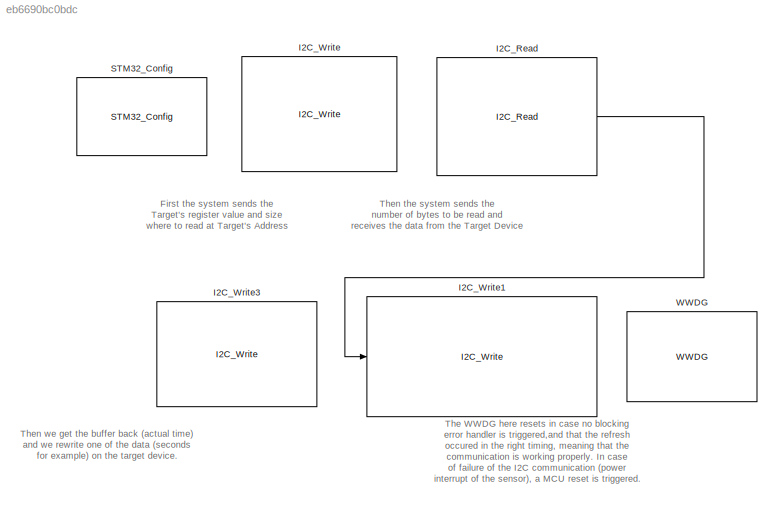
MODEL slx_eb6690bc0bdc
KIND model
CONFIG AbsTol = auto
CONFIG EnableMultiTasking = on
CONFIG FixedStep = 0.05
CONFIG MaxStep = auto
CONFIG MinStep = auto
CONFIG RelTol = 1e-3
CONFIG SampleTimeConstraint = Unconstrained
CONFIG Solver = FixedStepDiscrete
CONFIG SolverName = FixedStepDiscrete
CONFIG StartTime = 0.0
CONFIG StopTime = 10.0
BLOCK [Reference] I2C_Read  REF=I2C_Lib/I2C_Read
  Ports = [0, 1]
  Priority = 1
  SourceBlock = I2C_Lib/I2C_Read
  SourceProductName = Target Support Package - STM32 Adapter
  SourceType = I2C_Read
BLOCK [Reference] I2C_Write  REF=I2C_Lib/I2C_Write
  Ports = []
  Priority = 0
  SourceBlock = I2C_Lib/I2C_Write
  SourceProductName = Target Support Package - STM32 Adapter
  SourceType = I2C_Write
BLOCK [Reference] I2C_Write1  REF=I2C_Lib/I2C_Write
  Ports = [1]
  Priority = 3
  SourceBlock = I2C_Lib/I2C_Write
  SourceProductName = Target Support Package - STM32 Adapter
  SourceType = I2C_Write
BLOCK [Reference] I2C_Write3  REF=I2C_Lib/I2C_Write
  Ports = []
  Priority = 2
  SourceBlock = I2C_Lib/I2C_Write
  SourceProductName = Target Support Package - STM32 Adapter
  SourceType = I2C_Write
BLOCK [Reference] STM32_Config  REF=STM32_Config_Lib/STM32_Config
  Ports = []
  SourceBlock = STM32_Config_Lib/STM32_Config
  SourceProductName = Target Support Package - STM32 Adapter
  SourceType = STM32_Config
BLOCK [Reference] WWDG  REF=WDG_Lib/WWDG
  Ports = []
  SourceBlock = WDG_Lib/WWDG
  SourceProductName = Target Support Package - STM32 Adapter
  SourceType = WWDG
ANNOTATION (root): First the system sends the Target's register value and size where to read at Target's Address
ANNOTATION (root): The WWDG here resets in case no blocking error handler is triggered,and that the refresh occured in the right timing, meaning that the communication is working properly. In case of failure of the I2C communication (power interrupt of the sensor), a MCU reset is triggered. The timeout of the watchdog must therefore be bigger than the time step imposed by the solver (see Model Configuration Paramete...<+4ch>
ANNOTATION (root): Then the system sends the number of bytes to be read and receives the data from the Target Device
ANNOTATION (root): Then we get the buffer back (actual time) and we rewrite one of the data (seconds for example) on the target device.
LINE I2C_Read:1 -> I2C_Write1:1
